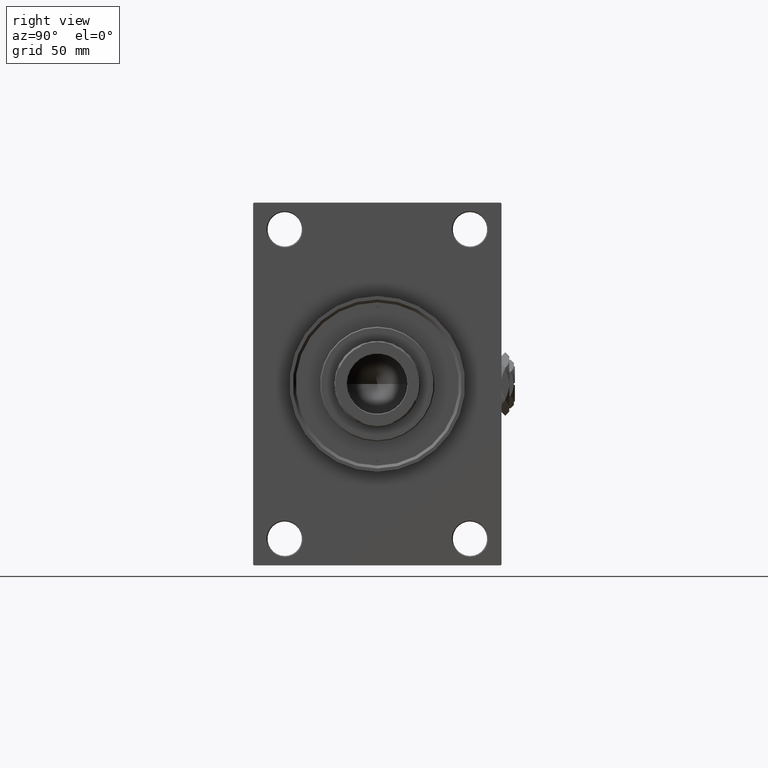
[diagram: clean part render]
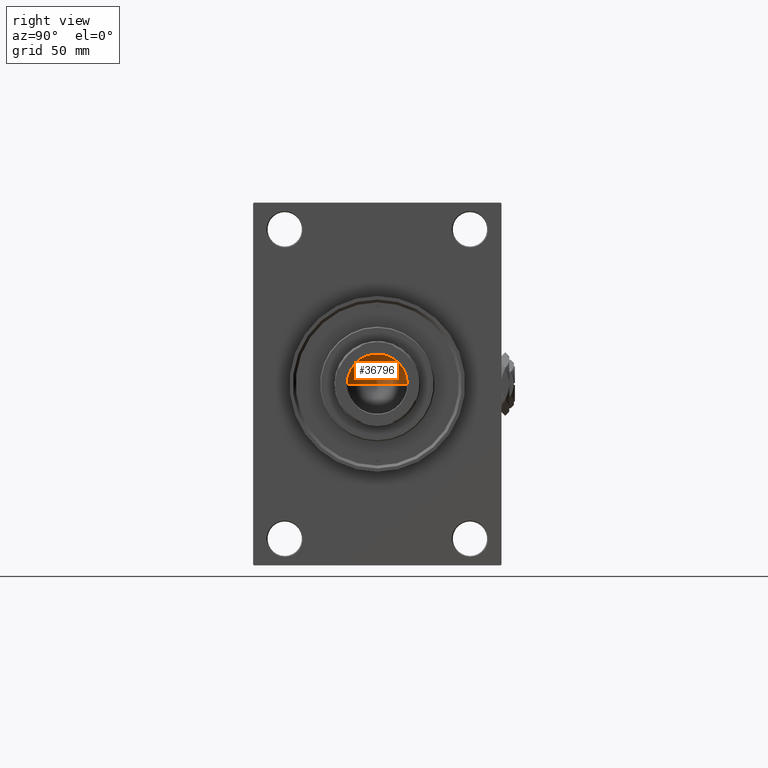
[diagram: same view with one face highlighted and labeled with its STEP entity id]
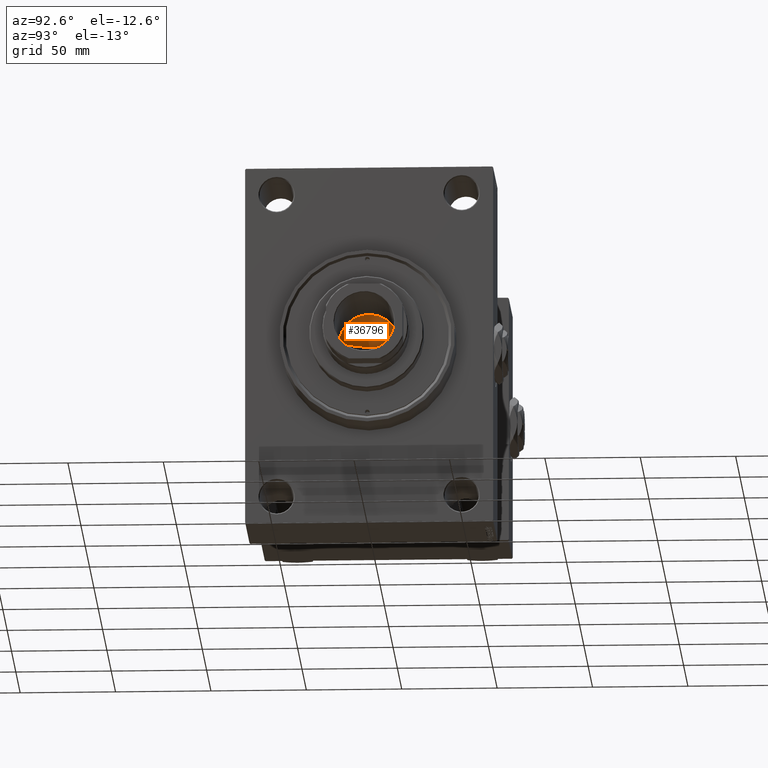
[diagram: same view with one face highlighted and labeled with its STEP entity id]
A machine part, right view. The second image highlights one B-rep face of the part: STEP entity #36796.
A second angle (auxiliary view) of the same face is appended — the face is thin or edge-on in the first view.
In plain terms, the highlighted conical surface has half-angle 59 deg.
Its self-contained STEP definition (entity closure, byte-faithful):
#2098 = LINE ( 'NONE', #25367, #11501 ) ;
#2410 = ORIENTED_EDGE ( 'NONE', *, *, #18122, .F. ) ;
#5017 = CARTESIAN_POINT ( 'NONE',  ( 15.74999999999998934, 0.000000000000000000, 183.0000000000000000 ) ) ;
#5788 = DIRECTION ( 'NONE',  ( 1.000000000000000000, 0.000000000000000000, 0.000000000000000000 ) ) ;
#6284 = DIRECTION ( 'NONE',  ( -0.000000000000000000, -0.000000000000000000, 1.000000000000000000 ) ) ;
#8931 = DIRECTION ( 'NONE',  ( -0.8571673007021112234, 1.049727191138617340E-16, 0.5150380749100560429 ) ) ;
#9839 = EDGE_CURVE ( 'NONE', #11888, #11626, #2098, .T. ) ;
#10337 = ORIENTED_EDGE ( 'NONE', *, *, #9839, .T. ) ;
#10953 = CARTESIAN_POINT ( 'NONE',  ( 15.74999999999998934, 0.000000000000000000, 183.0000000000000000 ) ) ;
#11501 = VECTOR ( 'NONE', #8931, 1000.000000000000000 ) ;
#11626 = VERTEX_POINT ( 'NONE', #23338 ) ;
#11683 = CIRCLE ( 'NONE', #30314, 15.74999999999998934 ) ;
#11888 = VERTEX_POINT ( 'NONE', #38707 ) ;
#13866 = FACE_OUTER_BOUND ( 'NONE', #43844, .T. ) ;
#17782 = ORIENTED_EDGE ( 'NONE', *, *, #41339, .T. ) ;
#18122 = EDGE_CURVE ( 'NONE', #11888, #33291, #24999, .T. ) ;
#21184 = DIRECTION ( 'NONE',  ( 0.8571673007021112234, 0.000000000000000000, 0.5150380749100560429 ) ) ;
#21373 = CARTESIAN_POINT ( 'NONE',  ( 0.000000000000000000, 0.000000000000000000, 183.0000000000000000 ) ) ;
#23338 = CARTESIAN_POINT ( 'NONE',  ( -15.74999999999998934, 1.928818708657080161E-15, 183.0000000000000000 ) ) ;
#24999 = LINE ( 'NONE', #5017, #29592 ) ;
#25367 = CARTESIAN_POINT ( 'NONE',  ( -15.74999999999998934, 1.928818708657080161E-15, 183.0000000000000000 ) ) ;
#29592 = VECTOR ( 'NONE', #21184, 1000.000000000000000 ) ;
#30314 = AXIS2_PLACEMENT_3D ( 'NONE', #21373, #6284, #48988 ) ;
#33291 = VERTEX_POINT ( 'NONE', #10953 ) ;
#35789 = CONICAL_SURFACE ( 'NONE', #46269, 15.74999999999998934, 1.029744258676652313 ) ;
#36796 = ADVANCED_FACE ( 'NONE', ( #13866 ), #35789, .F. ) ;
#37639 = CARTESIAN_POINT ( 'NONE',  ( 0.000000000000000000, 0.000000000000000000, 183.0000000000000000 ) ) ;
#38707 = CARTESIAN_POINT ( 'NONE',  ( -1.584115414415908206E-14, 0.000000000000000000, 173.5364452503158930 ) ) ;
#41339 = EDGE_CURVE ( 'NONE', #11626, #33291, #11683, .T. ) ;
#43844 = EDGE_LOOP ( 'NONE', ( #2410, #10337, #17782 ) ) ;
#44719 = DIRECTION ( 'NONE',  ( -0.000000000000000000, -0.000000000000000000, 1.000000000000000000 ) ) ;
#46269 = AXIS2_PLACEMENT_3D ( 'NONE', #37639, #44719, #5788 ) ;
#48988 = DIRECTION ( 'NONE',  ( 1.000000000000000000, 0.000000000000000000, 0.000000000000000000 ) ) ;